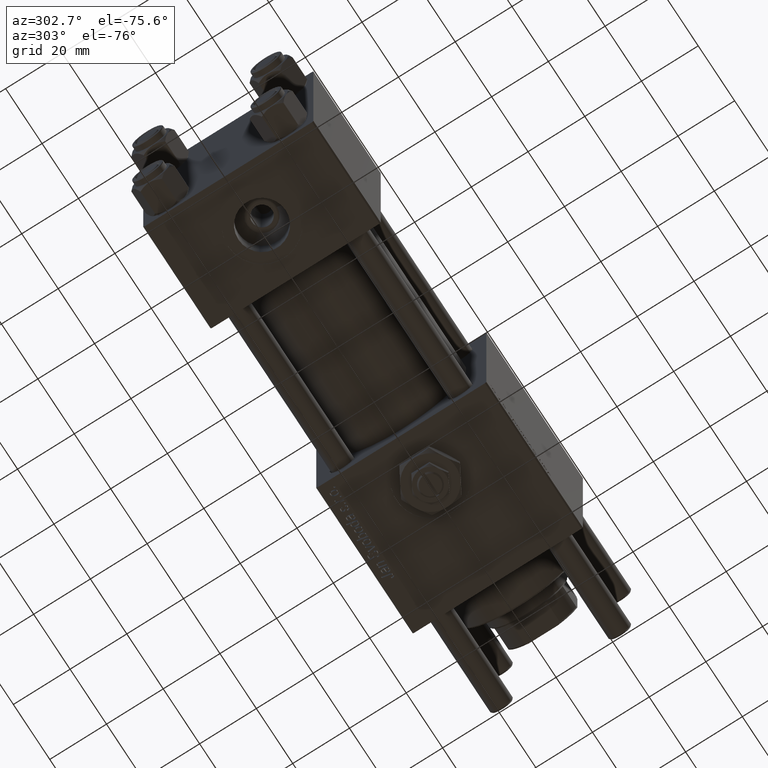
[diagram: clean part render]
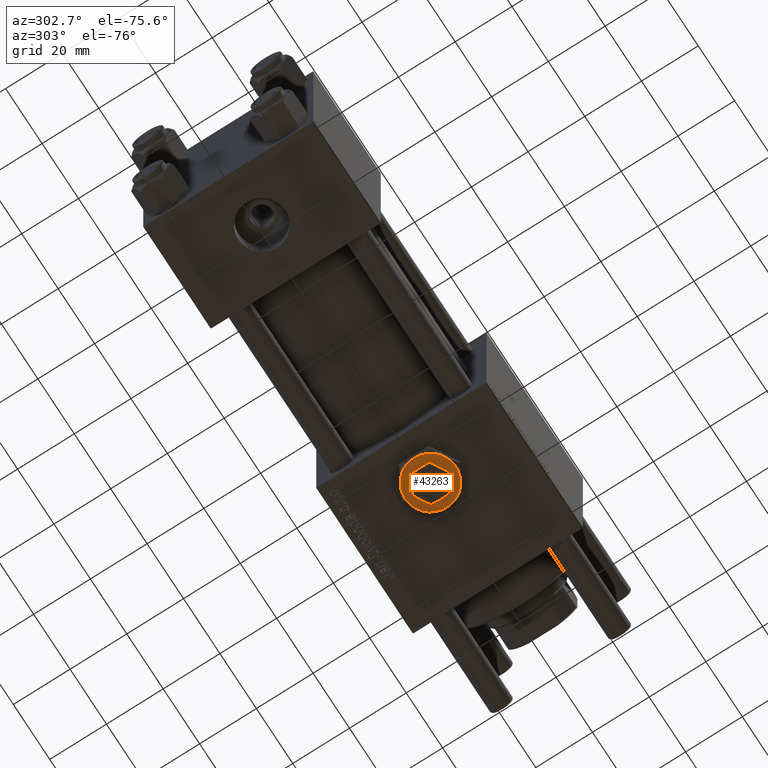
[diagram: same view with one face highlighted and labeled with its STEP entity id]
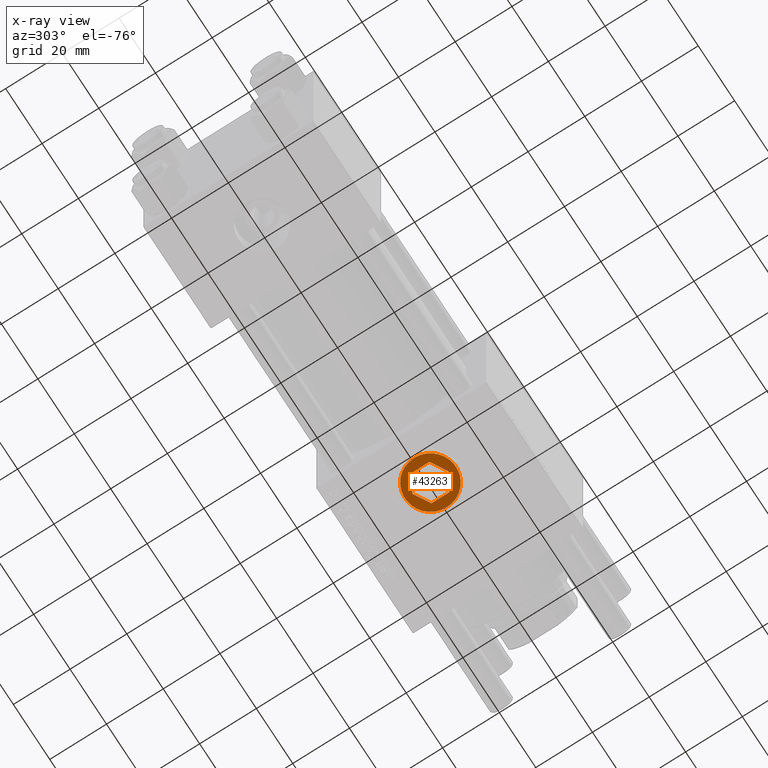
[diagram: x-ray of the same camera — body ghosted, the highlighted face saturated]
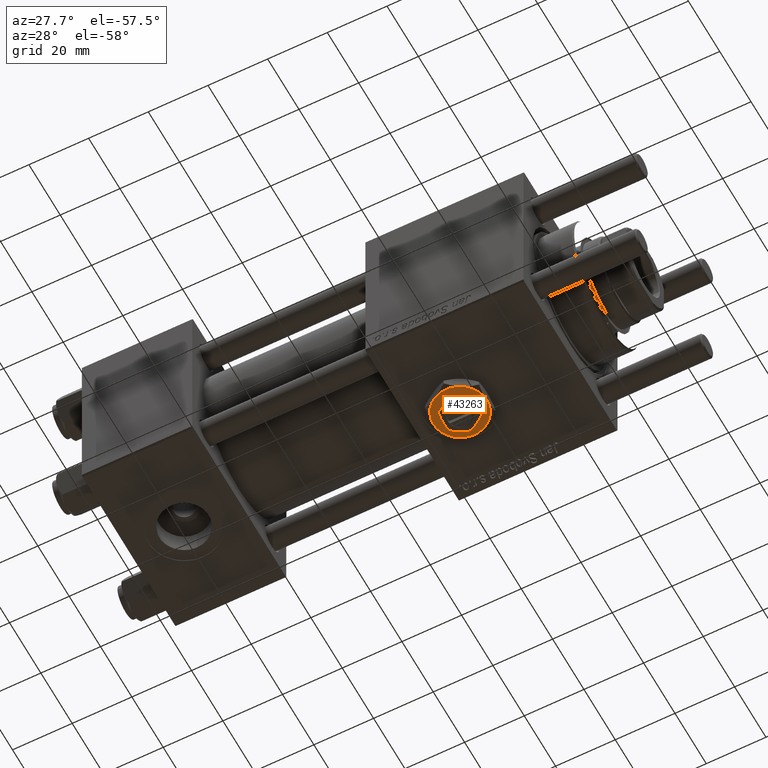
[diagram: same view with one face highlighted and labeled with its STEP entity id]
A machine part, auxiliary view. The second image highlights one B-rep face of the part: STEP entity #43263.
The next image is the same camera in x-ray: the body ghosted, the highlighted face saturated — about 0% of this face is hidden behind the body in this view.
A second angle (auxiliary view) of the same face is appended — the face is thin or edge-on in the first view.
In plain terms, the highlighted planar face has unit normal (0, 0, -1).
Its self-contained STEP definition (entity closure, byte-faithful):
#613 = ORIENTED_EDGE ( 'NONE', *, *, #15124, .T. ) ;
#857 = DIRECTION ( 'NONE',  ( 0.000000000000000000, 0.000000000000000000, 1.000000000000000000 ) ) ;
#1024 = CARTESIAN_POINT ( 'NONE',  ( 5.500000000000000888, -3.175426480542940855, 4.299999999999999822 ) ) ;
#2568 = VERTEX_POINT ( 'NONE', #35018 ) ;
#3046 = DIRECTION ( 'NONE',  ( 0.000000000000000000, 0.000000000000000000, 1.000000000000000000 ) ) ;
#3795 = CIRCLE ( 'NONE', #22866, 9.000000000000000000 ) ;
#4540 = EDGE_CURVE ( 'NONE', #12202, #55764, #58524, .T. ) ;
#4877 = DIRECTION ( 'NONE',  ( 0.000000000000000000, 0.000000000000000000, 1.000000000000000000 ) ) ;
#5631 = DIRECTION ( 'NONE',  ( 1.000000000000000000, 0.000000000000000000, 0.000000000000000000 ) ) ;
#6621 = LINE ( 'NONE', #43064, #10740 ) ;
#6879 = ORIENTED_EDGE ( 'NONE', *, *, #48949, .T. ) ;
#7880 = VERTEX_POINT ( 'NONE', #1024 ) ;
#7947 = CARTESIAN_POINT ( 'NONE',  ( -5.500000000000000000, 3.175426480542941743, 4.299999999999999822 ) ) ;
#8283 = ORIENTED_EDGE ( 'NONE', *, *, #44578, .T. ) ;
#8440 = CARTESIAN_POINT ( 'NONE',  ( -4.499999999999998224, -7.794228634059947147, 4.299999999999999822 ) ) ;
#9043 = ORIENTED_EDGE ( 'NONE', *, *, #39606, .F. ) ;
#9113 = VERTEX_POINT ( 'NONE', #25282 ) ;
#9342 = CARTESIAN_POINT ( 'NONE',  ( 5.500000000000000888, -3.175426480542940855, 4.299999999999999822 ) ) ;
#10740 = VECTOR ( 'NONE', #24850, 1000.000000000000000 ) ;
#11731 = CARTESIAN_POINT ( 'NONE',  ( 0.000000000000000000, 0.000000000000000000, 4.299999999999999822 ) ) ;
#11961 = LINE ( 'NONE', #12248, #31522 ) ;
#12202 = VERTEX_POINT ( 'NONE', #16280 ) ;
#12248 = CARTESIAN_POINT ( 'NONE',  ( -1.343581385738006573E-15, -6.350852961085881709, 4.299999999999999822 ) ) ;
#12755 = ORIENTED_EDGE ( 'NONE', *, *, #57958, .F. ) ;
#13265 = CARTESIAN_POINT ( 'NONE',  ( 0.000000000000000000, 6.350852961085883486, 4.299999999999999822 ) ) ;
#13804 = CARTESIAN_POINT ( 'NONE',  ( -9.000000000000000000, 0.000000000000000000, 4.299999999999999822 ) ) ;
#13840 = EDGE_CURVE ( 'NONE', #9113, #49536, #39621, .T. ) ;
#13988 = EDGE_CURVE ( 'NONE', #45603, #43605, #57717, .T. ) ;
#15124 = EDGE_CURVE ( 'NONE', #18947, #31027, #32043, .T. ) ;
#15625 = FACE_BOUND ( 'NONE', #24451, .T. ) ;
#16176 = VECTOR ( 'NONE', #18305, 1000.000000000000000 ) ;
#16280 = CARTESIAN_POINT ( 'NONE',  ( -5.500000000000000000, -3.175426480542942187, 4.299999999999999822 ) ) ;
#16334 = CARTESIAN_POINT ( 'NONE',  ( 4.500000000000000000, 7.794228634059947147, 4.299999999999999822 ) ) ;
#17944 = DIRECTION ( 'NONE',  ( 0.000000000000000000, 0.000000000000000000, 1.000000000000000000 ) ) ;
#18305 = DIRECTION ( 'NONE',  ( -2.731481088613017227E-16, 1.000000000000000000, 0.000000000000000000 ) ) ;
#18947 = VERTEX_POINT ( 'NONE', #55800 ) ;
#21510 = AXIS2_PLACEMENT_3D ( 'NONE', #33849, #3046, #39186 ) ;
#21556 = PLANE ( 'NONE',  #55239 ) ;
#22866 = AXIS2_PLACEMENT_3D ( 'NONE', #35625, #53790, #36220 ) ;
#23992 = AXIS2_PLACEMENT_3D ( 'NONE', #31375, #17944, #40925 ) ;
#24451 = EDGE_LOOP ( 'NONE', ( #12755, #9043, #50174, #42717, #56949, #37592 ) ) ;
#24850 = DIRECTION ( 'NONE',  ( -0.8660254037844387076, 0.4999999999999999445, 0.000000000000000000 ) ) ;
#24983 = CIRCLE ( 'NONE', #23992, 9.000000000000000000 ) ;
#25094 = VECTOR ( 'NONE', #56660, 1000.000000000000114 ) ;
#25282 = CARTESIAN_POINT ( 'NONE',  ( 8.999999999999998224, 0.000000000000000000, 4.299999999999999822 ) ) ;
#25870 = CARTESIAN_POINT ( 'NONE',  ( 5.499999999999999112, 3.175426480542943075, 4.299999999999999822 ) ) ;
#26243 = AXIS2_PLACEMENT_3D ( 'NONE', #55317, #4877, #42211 ) ;
#26970 = LINE ( 'NONE', #9342, #16176 ) ;
#27275 = AXIS2_PLACEMENT_3D ( 'NONE', #32231, #857, #5631 ) ;
#29937 = DIRECTION ( 'NONE',  ( 1.000000000000000000, 0.000000000000000000, -0.000000000000000000 ) ) ;
#30888 = EDGE_CURVE ( 'NONE', #49536, #18947, #3795, .T. ) ;
#31027 = VERTEX_POINT ( 'NONE', #13804 ) ;
#31375 = CARTESIAN_POINT ( 'NONE',  ( 0.000000000000000000, 0.000000000000000000, 4.299999999999999822 ) ) ;
#31522 = VECTOR ( 'NONE', #57317, 1000.000000000000000 ) ;
#31749 = EDGE_CURVE ( 'NONE', #7880, #46550, #26970, .T. ) ;
#32043 = CIRCLE ( 'NONE', #27275, 9.000000000000000000 ) ;
#32231 = CARTESIAN_POINT ( 'NONE',  ( 0.000000000000000000, 0.000000000000000000, 4.299999999999999822 ) ) ;
#32234 = CARTESIAN_POINT ( 'NONE',  ( 0.000000000000000000, 0.000000000000000000, 4.299999999999999822 ) ) ;
#33420 = EDGE_LOOP ( 'NONE', ( #8283, #43323, #41914, #613, #6879, #49035 ) ) ;
#33749 = EDGE_CURVE ( 'NONE', #55764, #7880, #11961, .T. ) ;
#33849 = CARTESIAN_POINT ( 'NONE',  ( 0.000000000000000000, 0.000000000000000000, 4.299999999999999822 ) ) ;
#35018 = CARTESIAN_POINT ( 'NONE',  ( -5.500000000000000000, 3.175426480542941743, 4.299999999999999822 ) ) ;
#35455 = CARTESIAN_POINT ( 'NONE',  ( 4.499999999999997335, -7.794228634059948035, 4.299999999999999822 ) ) ;
#35625 = CARTESIAN_POINT ( 'NONE',  ( 0.000000000000000000, 0.000000000000000000, 4.299999999999999822 ) ) ;
#36155 = CARTESIAN_POINT ( 'NONE',  ( -1.343581385738006573E-15, -6.350852961085881709, 4.299999999999999822 ) ) ;
#36220 = DIRECTION ( 'NONE',  ( 1.000000000000000000, 0.000000000000000000, 0.000000000000000000 ) ) ;
#37592 = ORIENTED_EDGE ( 'NONE', *, *, #47406, .F. ) ;
#37888 = CARTESIAN_POINT ( 'NONE',  ( 0.000000000000000000, 6.350852961085883486, 4.299999999999999822 ) ) ;
#39186 = DIRECTION ( 'NONE',  ( 1.000000000000000000, 0.000000000000000000, 0.000000000000000000 ) ) ;
#39187 = DIRECTION ( 'NONE',  ( 0.000000000000000000, 0.000000000000000000, 1.000000000000000000 ) ) ;
#39606 = EDGE_CURVE ( 'NONE', #46550, #58482, #6621, .T. ) ;
#39621 = CIRCLE ( 'NONE', #26243, 9.000000000000000000 ) ;
#39760 = FACE_OUTER_BOUND ( 'NONE', #33420, .T. ) ;
#40925 = DIRECTION ( 'NONE',  ( 1.000000000000000000, 0.000000000000000000, 0.000000000000000000 ) ) ;
#41914 = ORIENTED_EDGE ( 'NONE', *, *, #30888, .T. ) ;
#42211 = DIRECTION ( 'NONE',  ( 1.000000000000000000, 0.000000000000000000, 0.000000000000000000 ) ) ;
#42361 = LINE ( 'NONE', #37888, #25094 ) ;
#42377 = DIRECTION ( 'NONE',  ( 1.000000000000000000, 0.000000000000000000, 0.000000000000000000 ) ) ;
#42717 = ORIENTED_EDGE ( 'NONE', *, *, #33749, .F. ) ;
#43064 = CARTESIAN_POINT ( 'NONE',  ( 5.499999999999999112, 3.175426480542943075, 4.299999999999999822 ) ) ;
#43263 = ADVANCED_FACE ( 'NONE', ( #39760, #15625 ), #21556, .T. ) ;
#43323 = ORIENTED_EDGE ( 'NONE', *, *, #13840, .T. ) ;
#43605 = VERTEX_POINT ( 'NONE', #35455 ) ;
#44578 = EDGE_CURVE ( 'NONE', #43605, #9113, #52440, .T. ) ;
#45603 = VERTEX_POINT ( 'NONE', #8440 ) ;
#46550 = VERTEX_POINT ( 'NONE', #25870 ) ;
#47406 = EDGE_CURVE ( 'NONE', #2568, #12202, #58962, .T. ) ;
#48605 = AXIS2_PLACEMENT_3D ( 'NONE', #32234, #51023, #42377 ) ;
#48949 = EDGE_CURVE ( 'NONE', #31027, #45603, #24983, .T. ) ;
#49035 = ORIENTED_EDGE ( 'NONE', *, *, #13988, .T. ) ;
#49424 = DIRECTION ( 'NONE',  ( 0.000000000000000000, -1.000000000000000000, 0.000000000000000000 ) ) ;
#49536 = VERTEX_POINT ( 'NONE', #16334 ) ;
#50174 = ORIENTED_EDGE ( 'NONE', *, *, #31749, .F. ) ;
#51023 = DIRECTION ( 'NONE',  ( 0.000000000000000000, 0.000000000000000000, 1.000000000000000000 ) ) ;
#51511 = VECTOR ( 'NONE', #53456, 1000.000000000000000 ) ;
#52440 = CIRCLE ( 'NONE', #48605, 9.000000000000000000 ) ;
#53456 = DIRECTION ( 'NONE',  ( 0.8660254037844387076, -0.4999999999999998890, 0.000000000000000000 ) ) ;
#53790 = DIRECTION ( 'NONE',  ( 0.000000000000000000, 0.000000000000000000, 1.000000000000000000 ) ) ;
#54041 = CARTESIAN_POINT ( 'NONE',  ( -5.500000000000000000, -3.175426480542942187, 4.299999999999999822 ) ) ;
#55239 = AXIS2_PLACEMENT_3D ( 'NONE', #11731, #39187, #29937 ) ;
#55317 = CARTESIAN_POINT ( 'NONE',  ( 0.000000000000000000, 0.000000000000000000, 4.299999999999999822 ) ) ;
#55373 = VECTOR ( 'NONE', #49424, 1000.000000000000000 ) ;
#55764 = VERTEX_POINT ( 'NONE', #36155 ) ;
#55800 = CARTESIAN_POINT ( 'NONE',  ( -4.500000000000000000, 7.794228634059947147, 4.299999999999999822 ) ) ;
#56660 = DIRECTION ( 'NONE',  ( -0.8660254037844385966, -0.4999999999999999445, 0.000000000000000000 ) ) ;
#56949 = ORIENTED_EDGE ( 'NONE', *, *, #4540, .F. ) ;
#57317 = DIRECTION ( 'NONE',  ( 0.8660254037844388186, 0.4999999999999997224, 0.000000000000000000 ) ) ;
#57717 = CIRCLE ( 'NONE', #21510, 9.000000000000000000 ) ;
#57958 = EDGE_CURVE ( 'NONE', #58482, #2568, #42361, .T. ) ;
#58482 = VERTEX_POINT ( 'NONE', #13265 ) ;
#58524 = LINE ( 'NONE', #54041, #51511 ) ;
#58962 = LINE ( 'NONE', #7947, #55373 ) ;